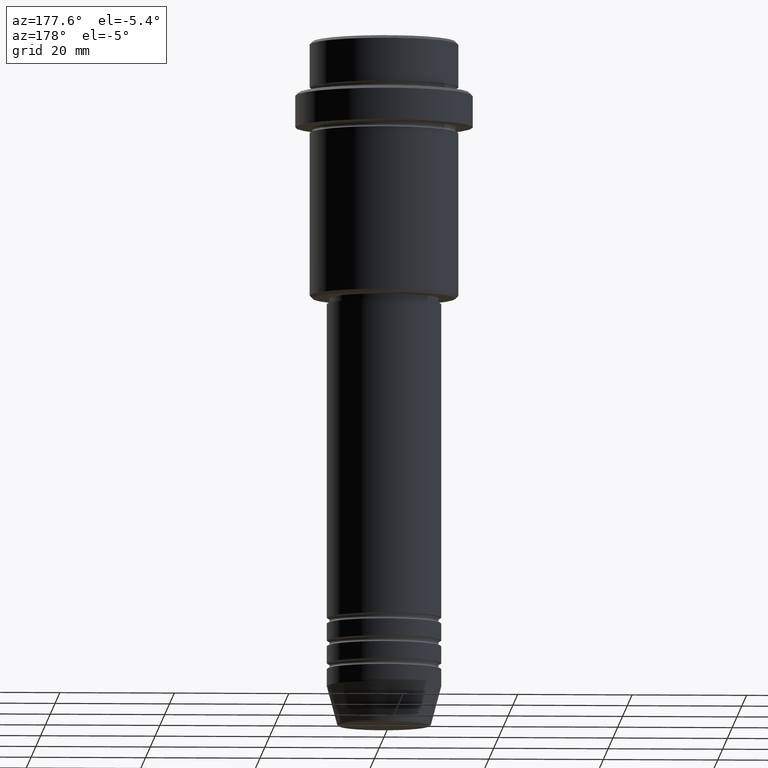
[diagram: clean part render]
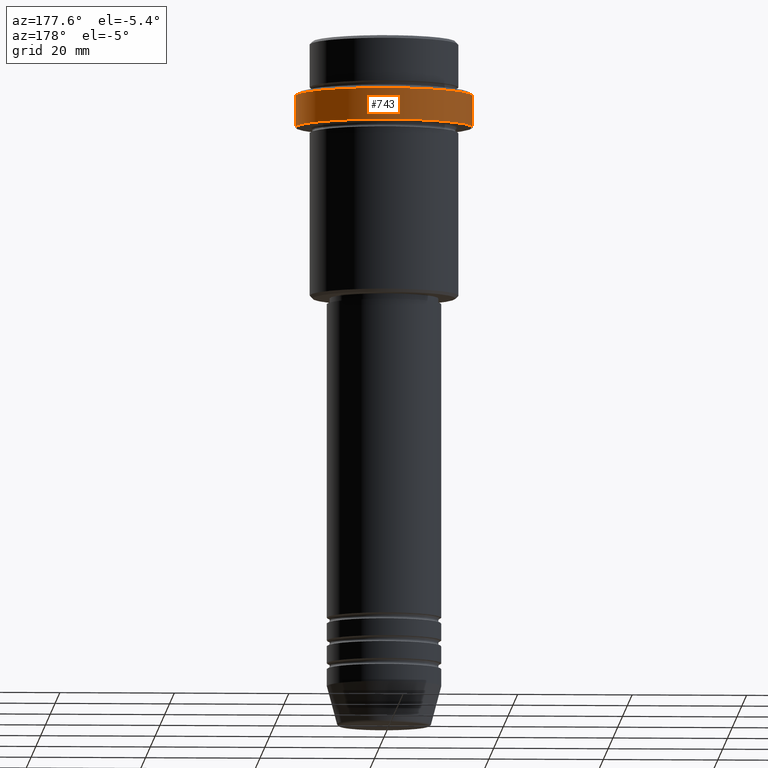
[diagram: same view with one face highlighted and labeled with its STEP entity id]
A machine part, auxiliary view. The second image highlights one B-rep face of the part: STEP entity #743.
In plain terms, the highlighted cylindrical surface (partial cylindrical patch) has radius 15.5 mm, axis along (-0, -0, 1).
Its self-contained STEP definition (entity closure, byte-faithful):
#37 = DIRECTION ( 'NONE',  ( 0.000000000000000000, 0.000000000000000000, -1.000000000000000000 ) ) ;
#42 = VERTEX_POINT ( 'NONE', #555 ) ;
#132 = CARTESIAN_POINT ( 'NONE',  ( 15.50000000000000000, 0.000000000000000000, -15.00000000000000000 ) ) ;
#138 = ORIENTED_EDGE ( 'NONE', *, *, #1187, .T. ) ;
#161 = ORIENTED_EDGE ( 'NONE', *, *, #284, .T. ) ;
#177 = VECTOR ( 'NONE', #1065, 1000.000000000000000 ) ;
#181 = CARTESIAN_POINT ( 'NONE',  ( 0.000000000000000000, 0.000000000000000000, -15.00000000000000000 ) ) ;
#253 = DIRECTION ( 'NONE',  ( 1.000000000000000000, 0.000000000000000000, 0.000000000000000000 ) ) ;
#258 = DIRECTION ( 'NONE',  ( -0.000000000000000000, -0.000000000000000000, 1.000000000000000000 ) ) ;
#284 = EDGE_CURVE ( 'NONE', #735, #775, #636, .T. ) ;
#303 = CARTESIAN_POINT ( 'NONE',  ( -15.50000000000000000, 1.898202538678397557E-15, 0.000000000000000000 ) ) ;
#318 = CIRCLE ( 'NONE', #653, 15.50000000000000000 ) ;
#380 = CARTESIAN_POINT ( 'NONE',  ( 0.000000000000000000, 0.000000000000000000, -9.499999999999998224 ) ) ;
#476 = FACE_OUTER_BOUND ( 'NONE', #678, .T. ) ;
#521 = ORIENTED_EDGE ( 'NONE', *, *, #825, .F. ) ;
#524 = DIRECTION ( 'NONE',  ( 1.000000000000000000, 0.000000000000000000, 0.000000000000000000 ) ) ;
#536 = CARTESIAN_POINT ( 'NONE',  ( 15.50000000000000000, 0.000000000000000000, 0.000000000000000000 ) ) ;
#555 = CARTESIAN_POINT ( 'NONE',  ( 15.50000000000000000, 0.000000000000000000, -9.499999999999998224 ) ) ;
#636 = LINE ( 'NONE', #303, #177 ) ;
#653 = AXIS2_PLACEMENT_3D ( 'NONE', #380, #37, #253 ) ;
#678 = EDGE_LOOP ( 'NONE', ( #138, #161, #1284, #521 ) ) ;
#723 = DIRECTION ( 'NONE',  ( -0.000000000000000000, -0.000000000000000000, 1.000000000000000000 ) ) ;
#725 = CIRCLE ( 'NONE', #1093, 15.50000000000000000 ) ;
#735 = VERTEX_POINT ( 'NONE', #1017 ) ;
#743 = ADVANCED_FACE ( 'NONE', ( #476 ), #909, .T. ) ;
#752 = LINE ( 'NONE', #536, #1305 ) ;
#775 = VERTEX_POINT ( 'NONE', #1203 ) ;
#816 = EDGE_CURVE ( 'NONE', #775, #42, #318, .T. ) ;
#825 = EDGE_CURVE ( 'NONE', #937, #42, #752, .T. ) ;
#909 = CYLINDRICAL_SURFACE ( 'NONE', #1102, 15.50000000000000000 ) ;
#937 = VERTEX_POINT ( 'NONE', #132 ) ;
#1017 = CARTESIAN_POINT ( 'NONE',  ( -15.50000000000000000, 1.898202538678397557E-15, -15.00000000000000000 ) ) ;
#1065 = DIRECTION ( 'NONE',  ( -0.000000000000000000, -0.000000000000000000, 1.000000000000000000 ) ) ;
#1093 = AXIS2_PLACEMENT_3D ( 'NONE', #181, #723, #524 ) ;
#1102 = AXIS2_PLACEMENT_3D ( 'NONE', #1342, #258, #1131 ) ;
#1131 = DIRECTION ( 'NONE',  ( 1.000000000000000000, 0.000000000000000000, 0.000000000000000000 ) ) ;
#1179 = DIRECTION ( 'NONE',  ( -0.000000000000000000, -0.000000000000000000, 1.000000000000000000 ) ) ;
#1187 = EDGE_CURVE ( 'NONE', #937, #735, #725, .T. ) ;
#1203 = CARTESIAN_POINT ( 'NONE',  ( -15.50000000000000000, 1.898202538678397557E-15, -9.499999999999998224 ) ) ;
#1284 = ORIENTED_EDGE ( 'NONE', *, *, #816, .T. ) ;
#1305 = VECTOR ( 'NONE', #1179, 1000.000000000000000 ) ;
#1342 = CARTESIAN_POINT ( 'NONE',  ( 0.000000000000000000, 0.000000000000000000, 0.000000000000000000 ) ) ;